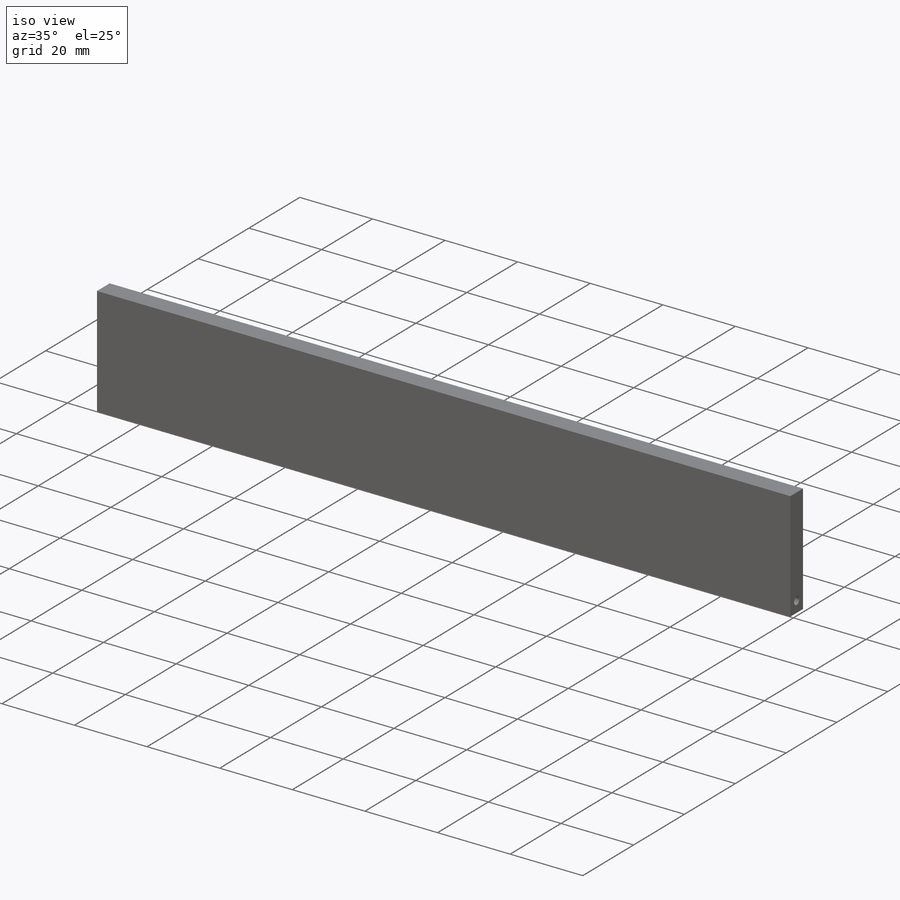
[diagram: iso view]
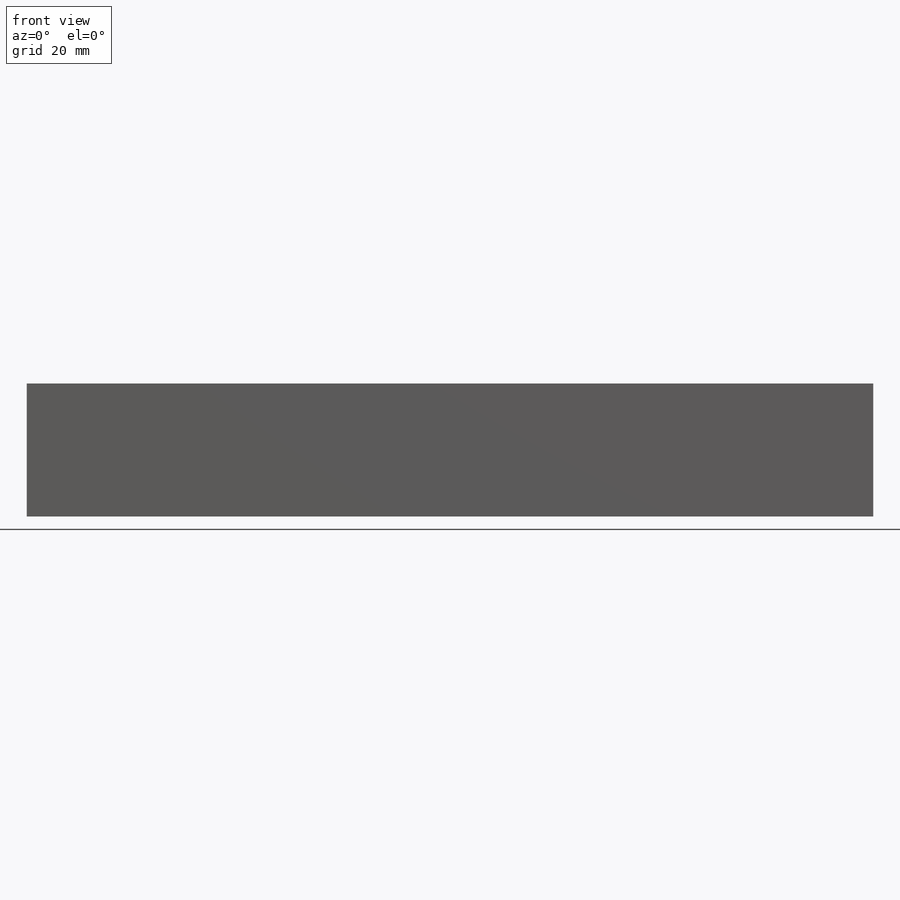
[diagram: front view]
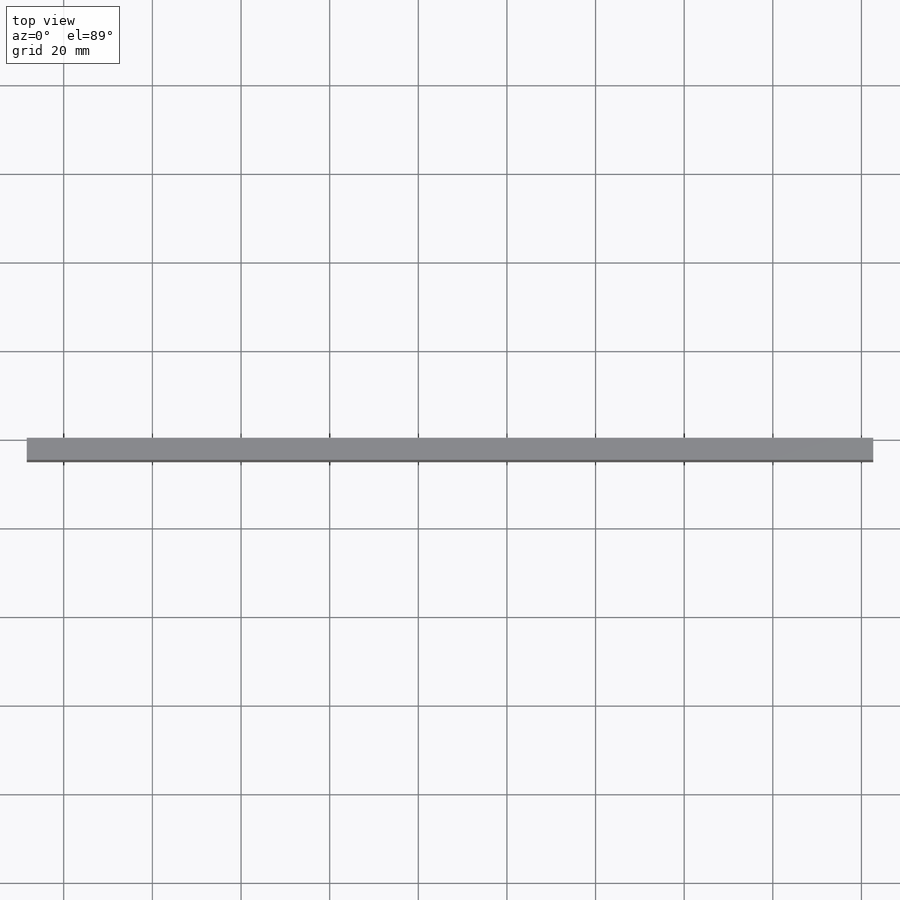
[diagram: top view]
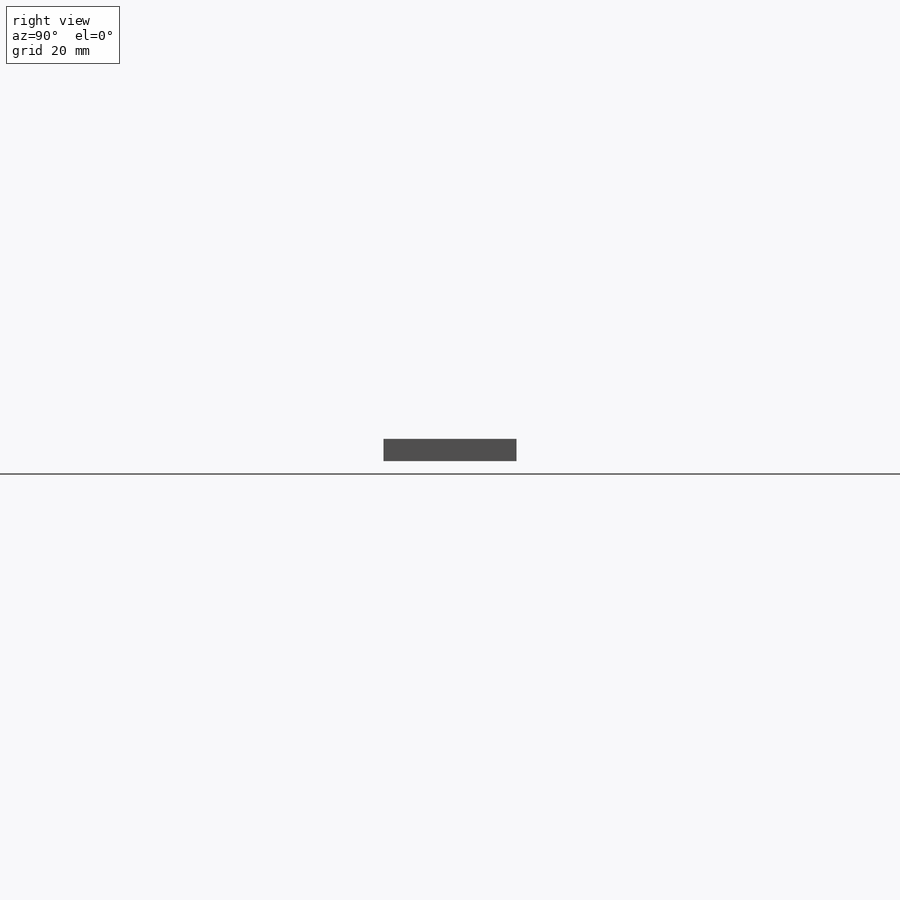
[diagram: right view]
SOLIDWORKS PART (.sldprt)
format: sldprt  version: not decoded by parser v0  size: 149,504 bytes
history: native  units: mm
features: plane x3, sketch x2, material x1, extrude x1, cut_extrude x1, pattern_linear x1 (+10 scaffold rows collapsed)
feature tree (19):
  scaffold x10  (default folders/planes/origin — collapsed)
  material  "Matériau <non spécifié>"
  plane  "Plan de face"
  plane  "Plan de dessus"
  plane  "Plan de droite"
  sketch  "Esquisse1"  dims[D1=191.0mm]
  extrude  "Boss.-Extru.1"  Depth=5mm
  sketch  "Esquisse3"  dims[D3=1.0mm D1=2.5mm D2=3.0mm]
  cut_extrude  "Enlèv. mat.-Extru.5"  Depth=10mm
  pattern_linear  "Répétition linéaire1"  Count1=2 Count2=1 Spacing1=181mm Spacing2=10mm
decode coverage: 5 of 5 modeling features carry decoded parameters
note: suppression state not decoded; provenance and decode notes live in map.json
